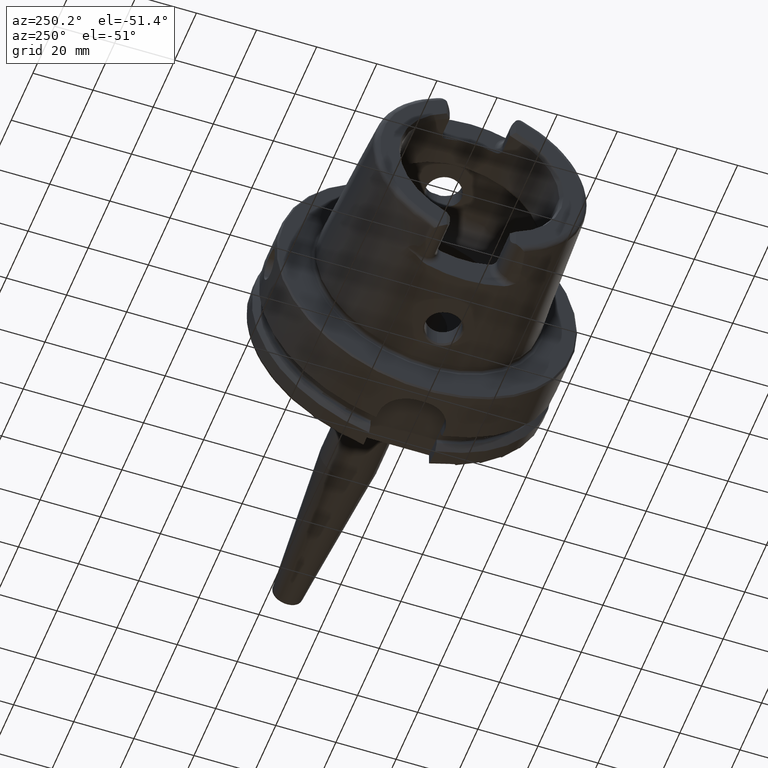
[diagram: clean part render]
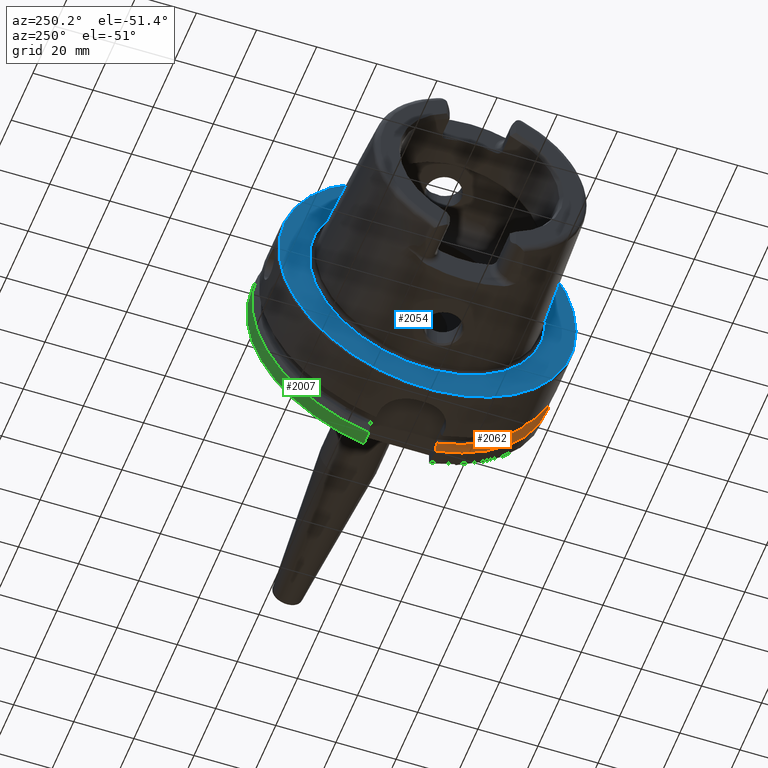
[diagram: same view with three faces highlighted in distinct colors, each labeled with its STEP entity id]
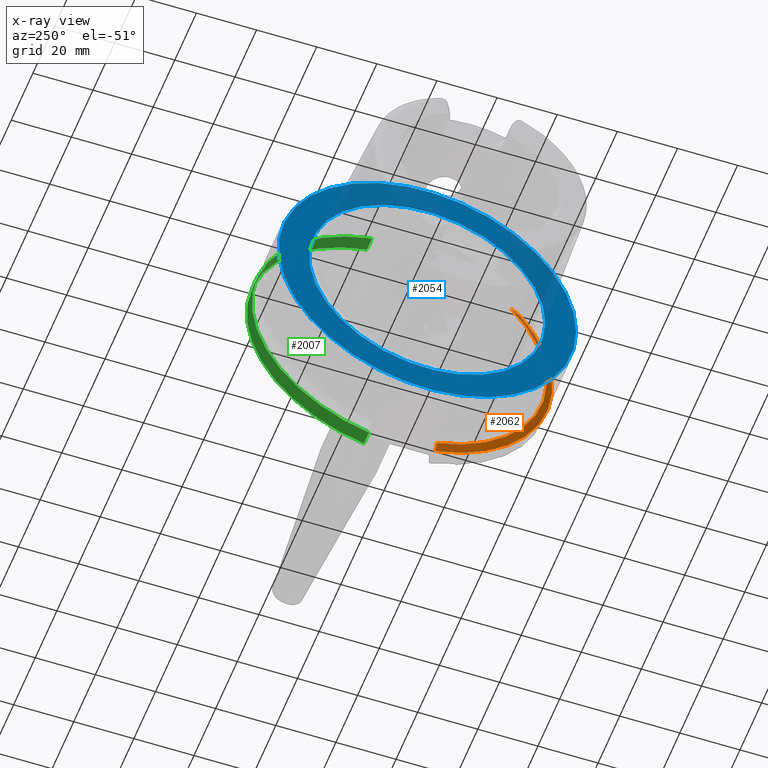
[diagram: x-ray of the same camera — body ghosted, the three highlighted faces saturated]
A machine part, auxiliary view with three faces highlighted in distinct colors.
The next image is the same camera in x-ray (body ghosted, the three faces saturated) — at least one of them is partly hidden behind the body in this view.
Their STEP definitions:

[orange] entity #2062 — the highlighted conical surface has half-angle 60 deg.
#20=(
BOUNDED_CURVE()
B_SPLINE_CURVE(2,(#3944,#3945,#3946),.UNSPECIFIED.,.F.,.F.)
B_SPLINE_CURVE_WITH_KNOTS((3,3),(0.,0.343884390880419),.UNSPECIFIED.)
CURVE()
GEOMETRIC_REPRESENTATION_ITEM()
RATIONAL_B_SPLINE_CURVE((1.,1.00052016257005,1.))
REPRESENTATION_ITEM('')
);
#25=(
BOUNDED_CURVE()
B_SPLINE_CURVE(2,(#4159,#4160,#4161),.UNSPECIFIED.,.F.,.F.)
B_SPLINE_CURVE_WITH_KNOTS((3,3),(0.,0.28292349080556),.UNSPECIFIED.)
CURVE()
GEOMETRIC_REPRESENTATION_ITEM()
RATIONAL_B_SPLINE_CURVE((1.,1.0003193410929,1.))
REPRESENTATION_ITEM('')
);
#107=CONICAL_SURFACE('',#2338,48.7987976320958,1.0471975511966);
#512=FACE_OUTER_BOUND('',#639,.T.);
#639=EDGE_LOOP('',(#1903,#1904,#1905,#1906));
#720=CIRCLE('',#2232,50.);
#772=CIRCLE('',#2337,47.5975952641917);
#895=VERTEX_POINT('',#3941);
#896=VERTEX_POINT('',#3943);
#930=VERTEX_POINT('',#4156);
#931=VERTEX_POINT('',#4158);
#1136=EDGE_CURVE('',#896,#895,#20,.T.);
#1186=EDGE_CURVE('',#931,#930,#25,.T.);
#1202=EDGE_CURVE('',#896,#930,#720,.T.);
#1287=EDGE_CURVE('',#895,#931,#772,.T.);
#1903=ORIENTED_EDGE('',*,*,#1136,.T.);
#1904=ORIENTED_EDGE('',*,*,#1287,.T.);
#1905=ORIENTED_EDGE('',*,*,#1186,.T.);
#1906=ORIENTED_EDGE('',*,*,#1202,.F.);
#2062=ADVANCED_FACE('',(#512),#107,.T.);
#2232=AXIS2_PLACEMENT_3D('',#4221,#2712,#2713);
#2337=AXIS2_PLACEMENT_3D('',#4465,#2946,#2947);
#2338=AXIS2_PLACEMENT_3D('',#4466,#2948,#2949);
#2712=DIRECTION('center_axis',(1.,0.,0.));
#2713=DIRECTION('ref_axis',(0.,0.,-1.));
#2946=DIRECTION('center_axis',(1.,0.,0.));
#2947=DIRECTION('ref_axis',(0.,0.,-1.));
#2948=DIRECTION('center_axis',(1.,0.,0.));
#2949=DIRECTION('ref_axis',(0.,-0.951449961441176,-0.307803461438603));
#3941=CARTESIAN_POINT('',(21.875,-35.6830642593065,31.5));
#3943=CARTESIAN_POINT('',(23.2620290209214,-38.8297566307078,31.5));
#3944=CARTESIAN_POINT('Ctrl Pts',(23.2620290209214,-38.8297566307078,31.5));
#3945=CARTESIAN_POINT('Ctrl Pts',(22.5392272442767,-37.2176818849707,31.5));
#3946=CARTESIAN_POINT('Ctrl Pts',(21.875,-35.6830642593065,31.5));
#4156=CARTESIAN_POINT('',(23.2620290209214,-11.,-48.7749935930288));
#4158=CARTESIAN_POINT('',(21.875,-11.,-46.3090819919138));
#4159=CARTESIAN_POINT('Ctrl Pts',(21.875,-11.,-46.3090819919138));
#4160=CARTESIAN_POINT('Ctrl Pts',(22.5505288964237,-11.,-47.5116880808802));
#4161=CARTESIAN_POINT('Ctrl Pts',(23.2620290209214,-11.,-48.7749935930288));
#4221=CARTESIAN_POINT('Origin',(23.2620290209214,0.,0.));
#4465=CARTESIAN_POINT('Origin',(21.875,0.,0.));
#4466=CARTESIAN_POINT('Origin',(22.5685145104607,0.,0.));

[blue] entity #2054 — the highlighted planar face has unit normal (-1, 0, 0).
#361=FACE_BOUND('',#631,.T.);
#396=PLANE('',#2323);
#504=FACE_OUTER_BOUND('',#630,.T.);
#630=EDGE_LOOP('',(#1872));
#631=EDGE_LOOP('',(#1873));
#765=CIRCLE('',#2322,39.2747800249997);
#766=CIRCLE('',#2324,49.5);
#975=VERTEX_POINT('',#4446);
#976=VERTEX_POINT('',#4450);
#1279=EDGE_CURVE('',#975,#975,#765,.T.);
#1280=EDGE_CURVE('',#976,#976,#766,.T.);
#1872=ORIENTED_EDGE('',*,*,#1280,.F.);
#1873=ORIENTED_EDGE('',*,*,#1279,.T.);
#2054=ADVANCED_FACE('',(#504,#361),#396,.T.);
#2322=AXIS2_PLACEMENT_3D('',#4448,#2915,#2916);
#2323=AXIS2_PLACEMENT_3D('',#4449,#2917,#2918);
#2324=AXIS2_PLACEMENT_3D('',#4451,#2919,#2920);
#2915=DIRECTION('center_axis',(1.,0.,0.));
#2916=DIRECTION('ref_axis',(0.,0.,-1.));
#2917=DIRECTION('center_axis',(-1.,0.,0.));
#2918=DIRECTION('ref_axis',(0.,0.,1.));
#2919=DIRECTION('center_axis',(1.,0.,0.));
#2920=DIRECTION('ref_axis',(0.,0.,-1.));
#4446=CARTESIAN_POINT('',(-1.04950770296597E-15,-39.2747800249997,-4.80977336448322E-15));
#4448=CARTESIAN_POINT('Origin',(0.,0.,0.));
#4449=CARTESIAN_POINT('Origin',(0.,49.5,0.));
#4450=CARTESIAN_POINT('',(1.28369537222284E-15,-49.5,-6.0620016557794E-15));
#4451=CARTESIAN_POINT('Origin',(0.,0.,0.));

[green] entity #2007 — the highlighted cylindrical surface (partial cylindrical patch) has radius 50 mm, axis along (1, 0, 0).
#176=LINE('',#4137,#280);
#186=LINE('',#4219,#290);
#280=VECTOR('',#2673,10.);
#290=VECTOR('',#2709,10.);
#335=CYLINDRICAL_SURFACE('',#2229,50.);
#457=FACE_OUTER_BOUND('',#580,.T.);
#580=EDGE_LOOP('',(#1642,#1643,#1644,#1645));
#717=CIRCLE('',#2226,50.);
#719=CIRCLE('',#2230,50.);
#918=VERTEX_POINT('',#4087);
#926=VERTEX_POINT('',#4133);
#938=VERTEX_POINT('',#4202);
#939=VERTEX_POINT('',#4217);
#1180=EDGE_CURVE('',#918,#926,#176,.T.);
#1197=EDGE_CURVE('',#918,#938,#717,.T.);
#1200=EDGE_CURVE('',#926,#939,#719,.T.);
#1201=EDGE_CURVE('',#939,#938,#186,.T.);
#1642=ORIENTED_EDGE('',*,*,#1180,.T.);
#1643=ORIENTED_EDGE('',*,*,#1200,.T.);
#1644=ORIENTED_EDGE('',*,*,#1201,.T.);
#1645=ORIENTED_EDGE('',*,*,#1197,.F.);
#2007=ADVANCED_FACE('',(#457),#335,.T.);
#2226=AXIS2_PLACEMENT_3D('',#4203,#2699,#2700);
#2229=AXIS2_PLACEMENT_3D('',#4216,#2705,#2706);
#2230=AXIS2_PLACEMENT_3D('',#4218,#2707,#2708);
#2673=DIRECTION('',(-1.,0.,0.));
#2699=DIRECTION('center_axis',(1.,0.,0.));
#2700=DIRECTION('ref_axis',(0.,0.,-1.));
#2705=DIRECTION('center_axis',(1.,0.,0.));
#2706=DIRECTION('ref_axis',(0.,1.,0.));
#2707=DIRECTION('center_axis',(1.,0.,0.));
#2708=DIRECTION('ref_axis',(0.,0.,-1.));
#2709=DIRECTION('',(1.,0.,0.));
#4087=CARTESIAN_POINT('',(28.,11.,-48.7749935930288));
#4133=CARTESIAN_POINT('',(23.2620290209214,11.,-48.7749935930288));
#4137=CARTESIAN_POINT('',(25.6310145104607,11.,-48.7749935930288));
#4202=CARTESIAN_POINT('',(28.,10.,48.9897948556636));
#4203=CARTESIAN_POINT('Origin',(28.,0.,0.));
#4216=CARTESIAN_POINT('Origin',(25.6310145104607,0.,0.));
#4217=CARTESIAN_POINT('',(23.2620290209214,10.,48.9897948556636));
#4218=CARTESIAN_POINT('Origin',(23.2620290209214,0.,0.));
#4219=CARTESIAN_POINT('',(25.6310145104607,10.,48.9897948556636));